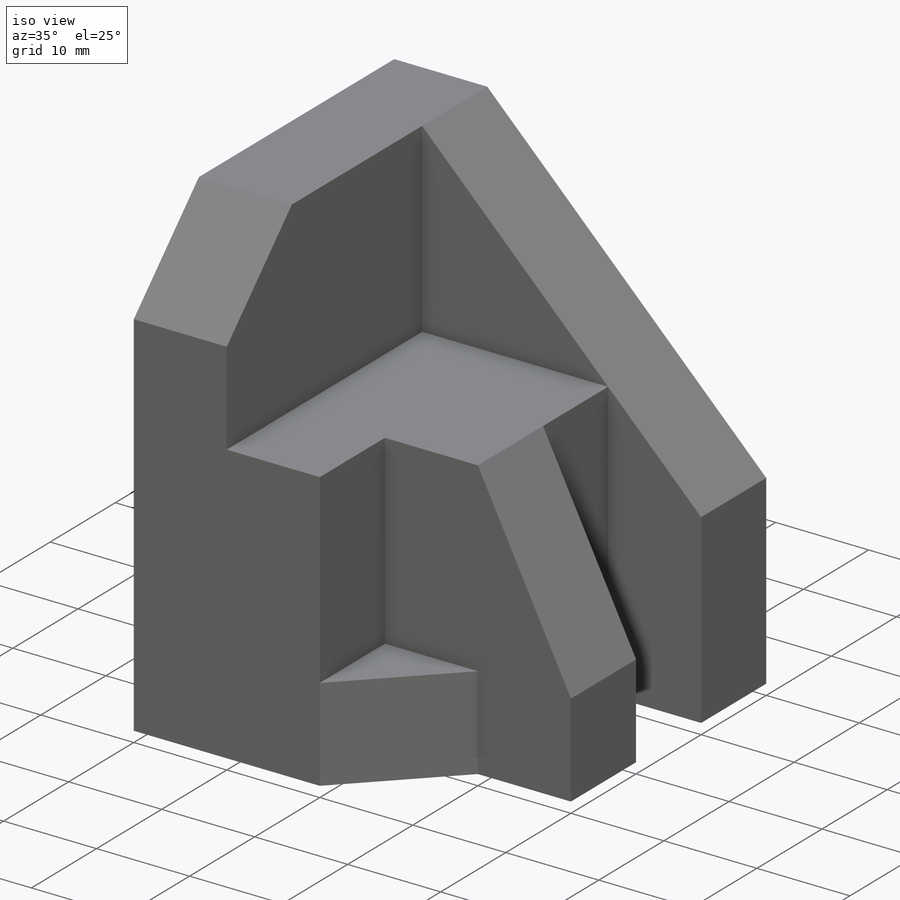
[diagram: iso view]
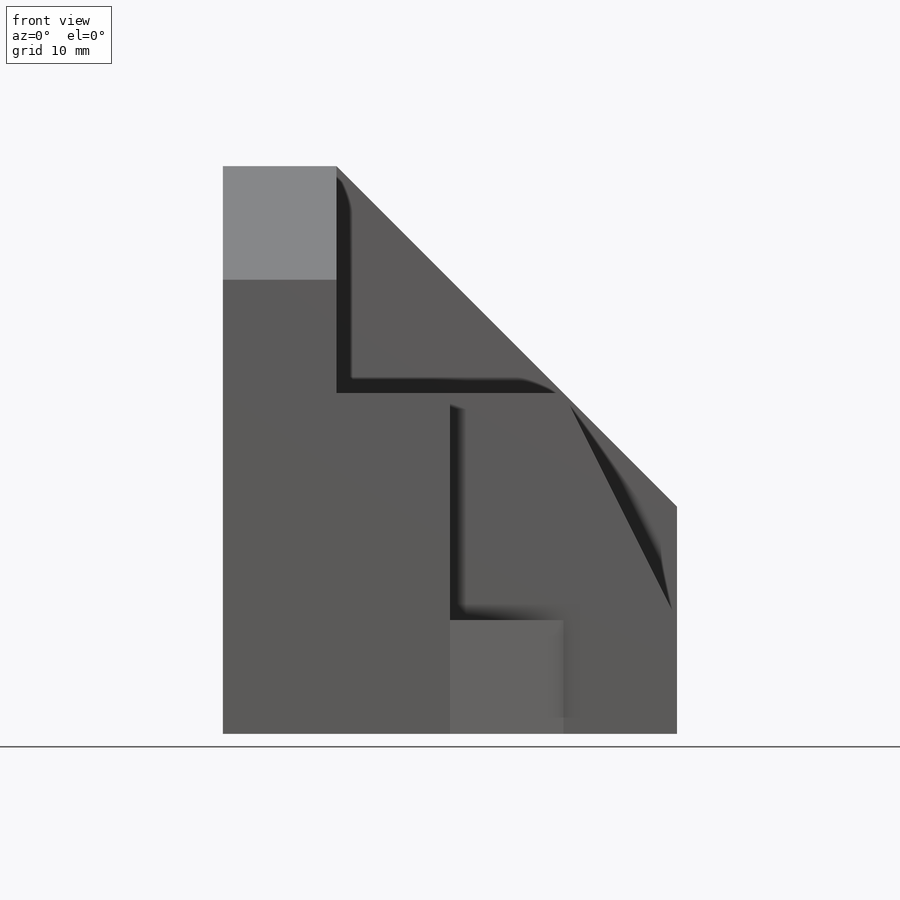
[diagram: front view]
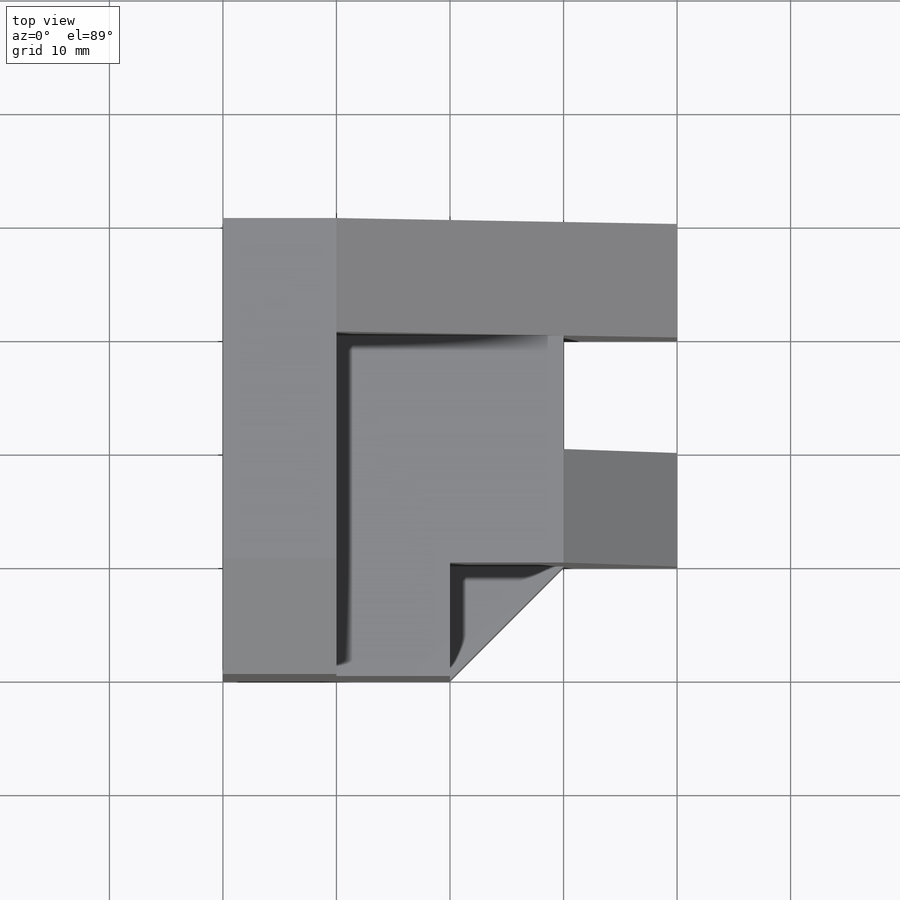
[diagram: top view]
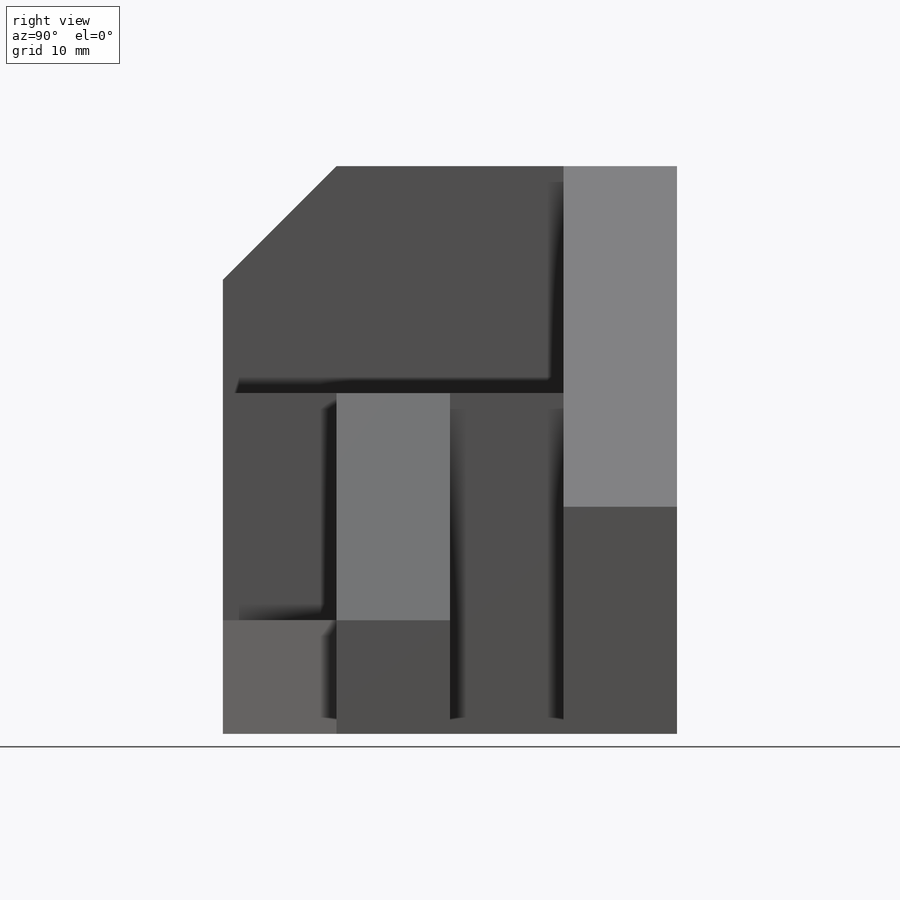
[diagram: right view]
SOLIDWORKS PART (.sldprt)
format: sldprt  version: not decoded by parser v0  size: 206,848 bytes
history: native  units: mm
features: sketch x5, cut_extrude x4, chamfer x4, material x1, extrude x1, plane x1 (+13 scaffold rows collapsed)
feature tree (29):
  scaffold x13  (default folders/planes/origin — collapsed)
  material  "Material <not specified>"
  sketch  "Sketch1"  dims[D1=40.0mm D2=50.0mm]
  extrude  "Boss-Extrude1"  Depth=40mm
  sketch  "Sketch2"  dims[D1=20.0mm D2=30.0mm]
  cut_extrude  "Cut-Extrude1"  Depth=30mm
  chamfer  "Chamfer1"  Distance=10mm Angle=45deg
  sketch  "Sketch4"  dims[D1=10.0mm D2=10.0mm]
  cut_extrude  "Cut-Extrude3"  Depth=20mm
  sketch  "Sketch5"  dims[D1=10.0mm]
  cut_extrude  "Cut-Extrude4"  Depth=20mm
  plane  "Plane1"
  chamfer  "Chamfer3"  Distance=10mm
  sketch  "Sketch7"  dims[D1=10.0mm D2=10.0mm]
  cut_extrude  "Cut-Extrude5"  Depth=31mm
  chamfer  "Chamfer4"  Distance=30mm
  chamfer  "Chamfer5"  Distance=10mm
decode coverage: 14 of 14 modeling features carry decoded parameters
note: suppression state not decoded; provenance and decode notes live in map.json
